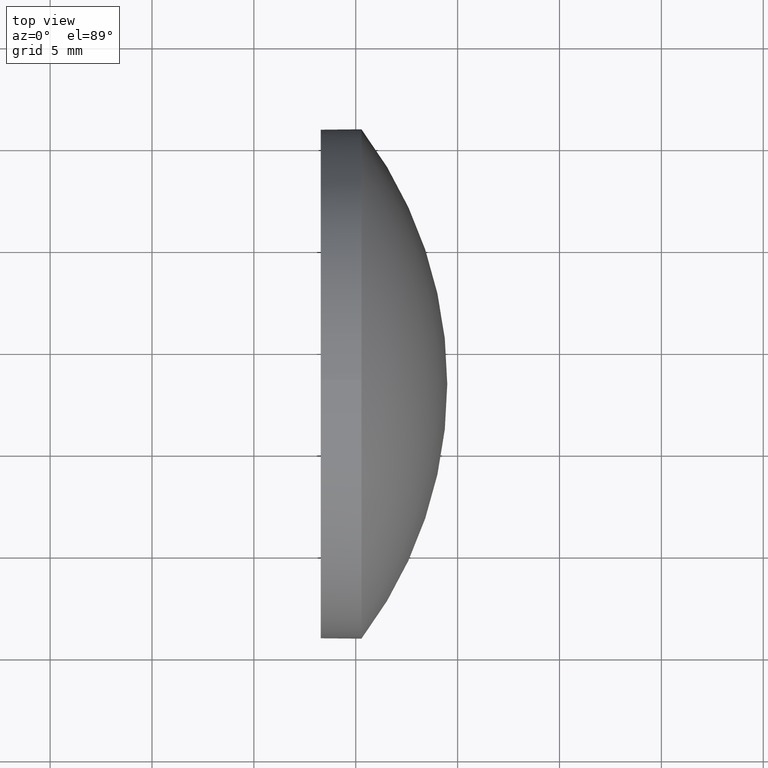
[diagram: clean part render]
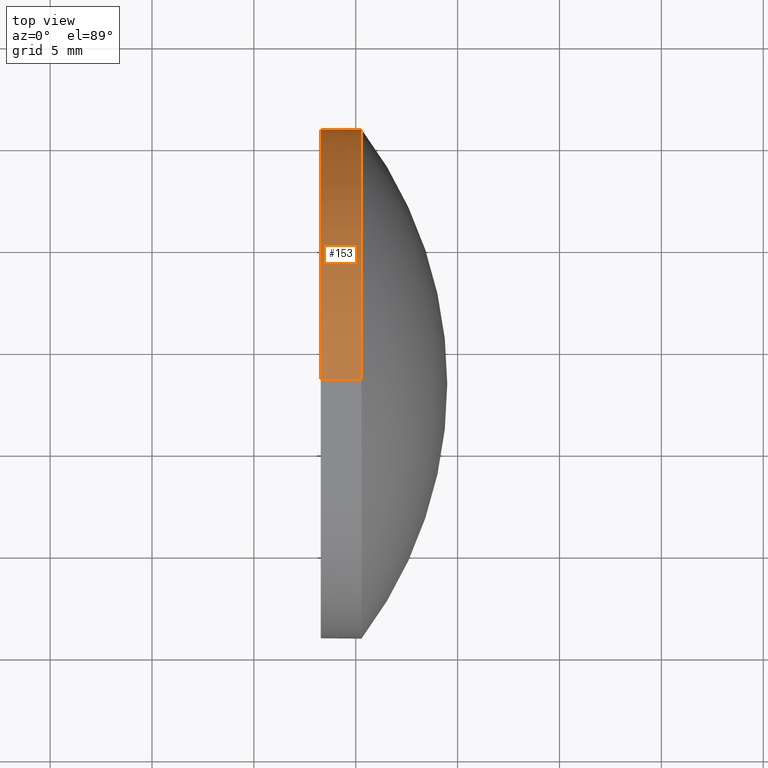
[diagram: same view with one face highlighted and labeled with its STEP entity id]
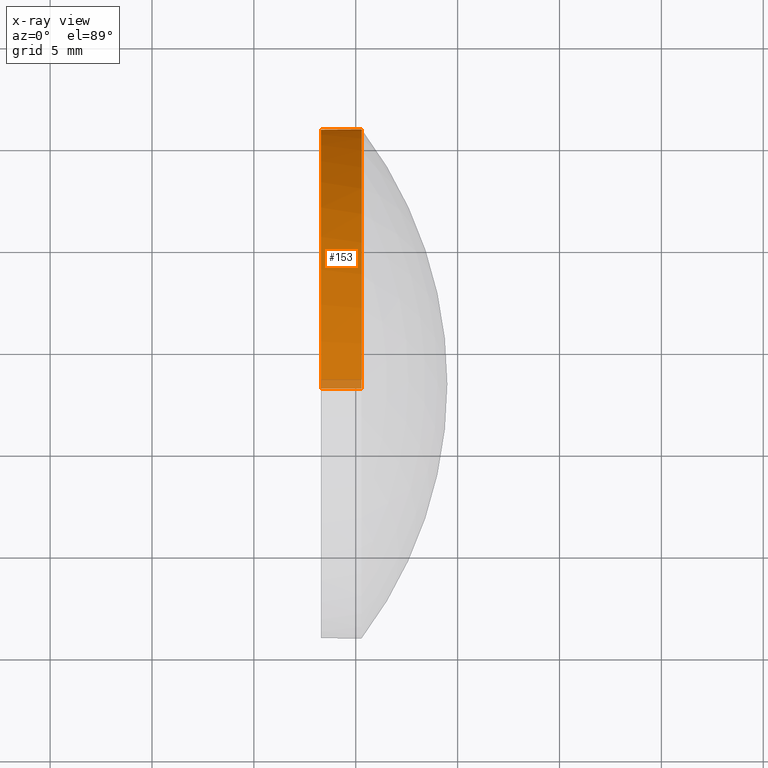
[diagram: x-ray of the same camera — body ghosted, the highlighted face saturated]
A machine part, top view. The second image highlights one B-rep face of the part: STEP entity #153.
The next image is the same camera in x-ray: the body ghosted, the highlighted face saturated — about 3% of this face is hidden behind the body in this view.
In plain terms, the highlighted cylindrical surface (partial cylindrical patch) has radius 12.5 mm, axis along (-1, -0, -0).
Its self-contained STEP definition (entity closure, byte-faithful):
#3 = EDGE_CURVE ( 'NONE', #55, #159, #17, .T. ) ;
#13 = CARTESIAN_POINT ( 'NONE',  ( 575.7766020623414500, 288.3208065953607500, -12.50000000000001100 ) ) ;
#17 = CIRCLE ( 'NONE', #116, 12.50000000000001100 ) ;
#22 = DIRECTION ( 'NONE',  ( 0.0000000000000000000, 0.0000000000000000000, 1.000000000000000000 ) ) ;
#24 = VECTOR ( 'NONE', #137, 1000.000000000000000 ) ;
#26 = CARTESIAN_POINT ( 'NONE',  ( 580.2815510819143600, 288.3208065953607500, 0.0000000000000000000 ) ) ;
#27 = EDGE_CURVE ( 'NONE', #159, #124, #173, .T. ) ;
#29 = CYLINDRICAL_SURFACE ( 'NONE', #134, 12.50000000000001100 ) ;
#31 = ORIENTED_EDGE ( 'NONE', *, *, #3, .T. ) ;
#34 = CARTESIAN_POINT ( 'NONE',  ( 578.2815510819143600, 288.3208065953607500, -12.50000000000001100 ) ) ;
#38 = CARTESIAN_POINT ( 'NONE',  ( 578.2815510819143600, 288.3208065953607500, 0.0000000000000000000 ) ) ;
#41 = DIRECTION ( 'NONE',  ( 0.0000000000000000000, 0.0000000000000000000, 1.000000000000000000 ) ) ;
#54 = DIRECTION ( 'NONE',  ( 0.0000000000000000000, 0.0000000000000000000, 1.000000000000000000 ) ) ;
#55 = VERTEX_POINT ( 'NONE', #142 ) ;
#76 = AXIS2_PLACEMENT_3D ( 'NONE', #38, #90, #41 ) ;
#78 = DIRECTION ( 'NONE',  ( -1.000000000000000000, -0.0000000000000000000, -0.0000000000000000000 ) ) ;
#90 = DIRECTION ( 'NONE',  ( -1.000000000000000000, -0.0000000000000000000, -0.0000000000000000000 ) ) ;
#98 = CARTESIAN_POINT ( 'NONE',  ( 575.7766020623414500, 288.3208065953607500, 12.50000000000001100 ) ) ;
#104 = DIRECTION ( 'NONE',  ( -1.000000000000000000, -0.0000000000000000000, -0.0000000000000000000 ) ) ;
#107 = EDGE_LOOP ( 'NONE', ( #31, #179, #140, #115, #152 ) ) ;
#108 = CIRCLE ( 'NONE', #129, 12.50000000000001100 ) ;
#114 = DIRECTION ( 'NONE',  ( 0.0000000000000000000, 0.0000000000000000000, 1.000000000000000000 ) ) ;
#115 = ORIENTED_EDGE ( 'NONE', *, *, #131, .F. ) ;
#116 = AXIS2_PLACEMENT_3D ( 'NONE', #26, #78, #114 ) ;
#117 = DIRECTION ( 'NONE',  ( -1.000000000000000000, -0.0000000000000000000, -0.0000000000000000000 ) ) ;
#119 = LINE ( 'NONE', #98, #24 ) ;
#122 = VERTEX_POINT ( 'NONE', #128 ) ;
#124 = VERTEX_POINT ( 'NONE', #34 ) ;
#128 = CARTESIAN_POINT ( 'NONE',  ( 578.2815510819143600, 288.3208065953607500, 12.50000000000001100 ) ) ;
#129 = AXIS2_PLACEMENT_3D ( 'NONE', #139, #184, #22 ) ;
#130 = CARTESIAN_POINT ( 'NONE',  ( 580.2815510819143600, 288.3208065953607500, -12.50000000000001100 ) ) ;
#131 = EDGE_CURVE ( 'NONE', #146, #122, #119, .T. ) ;
#134 = AXIS2_PLACEMENT_3D ( 'NONE', #186, #104, #54 ) ;
#137 = DIRECTION ( 'NONE',  ( -1.000000000000000000, -0.0000000000000000000, -0.0000000000000000000 ) ) ;
#138 = EDGE_CURVE ( 'NONE', #146, #55, #108, .T. ) ;
#139 = CARTESIAN_POINT ( 'NONE',  ( 580.2815510819143600, 288.3208065953607500, 0.0000000000000000000 ) ) ;
#140 = ORIENTED_EDGE ( 'NONE', *, *, #149, .F. ) ;
#142 = CARTESIAN_POINT ( 'NONE',  ( 580.2815510819143600, 300.8208065953607500, 0.0000000000000000000 ) ) ;
#144 = CIRCLE ( 'NONE', #76, 12.50000000000001100 ) ;
#146 = VERTEX_POINT ( 'NONE', #163 ) ;
#149 = EDGE_CURVE ( 'NONE', #122, #124, #144, .T. ) ;
#152 = ORIENTED_EDGE ( 'NONE', *, *, #138, .T. ) ;
#153 = ADVANCED_FACE ( 'NONE', ( #185 ), #29, .T. ) ;
#159 = VERTEX_POINT ( 'NONE', #130 ) ;
#163 = CARTESIAN_POINT ( 'NONE',  ( 580.2815510819143600, 288.3208065953607500, 12.50000000000001100 ) ) ;
#168 = VECTOR ( 'NONE', #117, 1000.000000000000000 ) ;
#173 = LINE ( 'NONE', #13, #168 ) ;
#179 = ORIENTED_EDGE ( 'NONE', *, *, #27, .T. ) ;
#184 = DIRECTION ( 'NONE',  ( -1.000000000000000000, -0.0000000000000000000, -0.0000000000000000000 ) ) ;
#185 = FACE_OUTER_BOUND ( 'NONE', #107, .T. ) ;
#186 = CARTESIAN_POINT ( 'NONE',  ( 575.7766020623414500, 288.3208065953607500, 0.0000000000000000000 ) ) ;